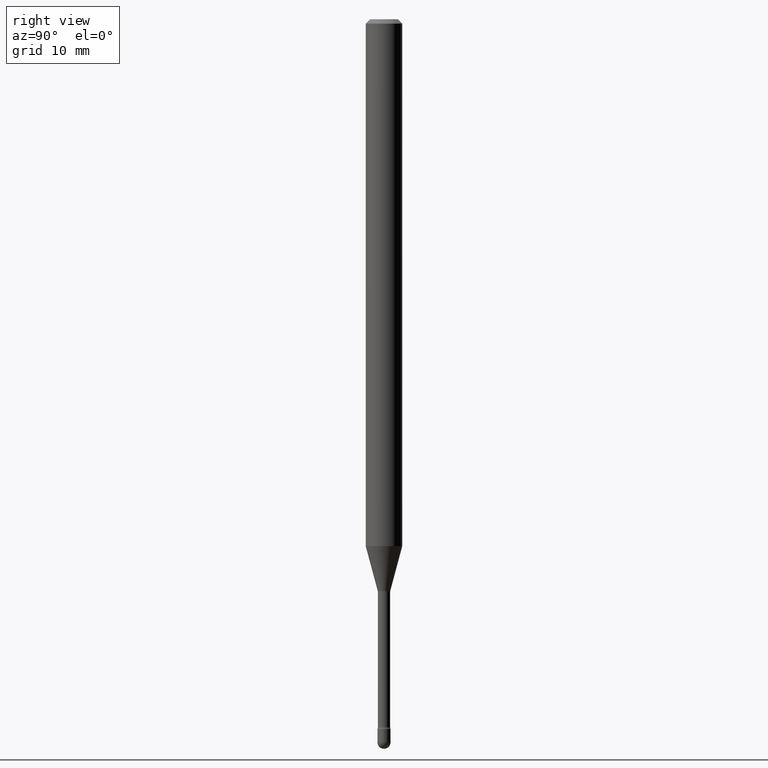
[diagram: clean part render]
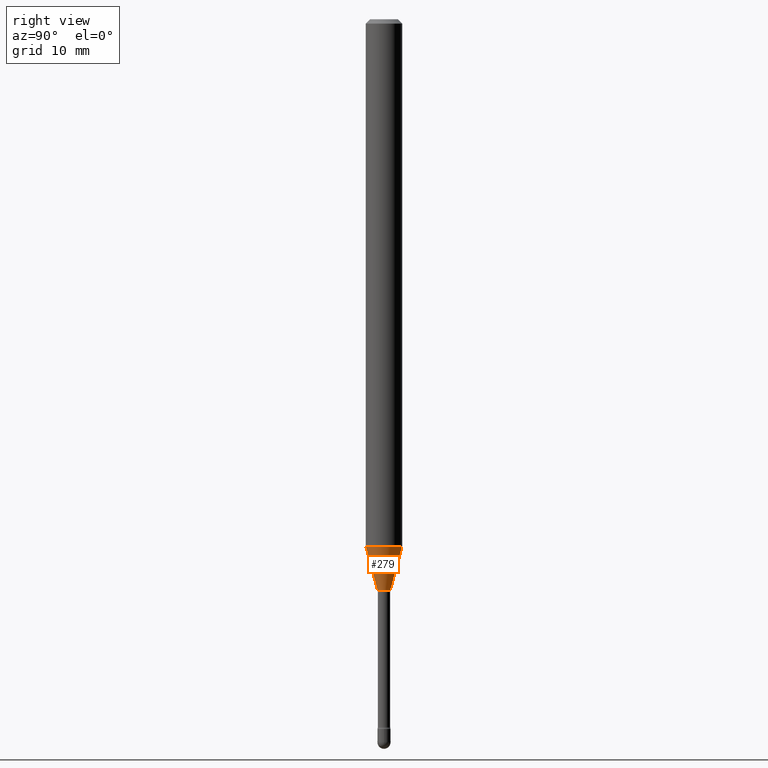
[diagram: same view with one face highlighted and labeled with its STEP entity id]
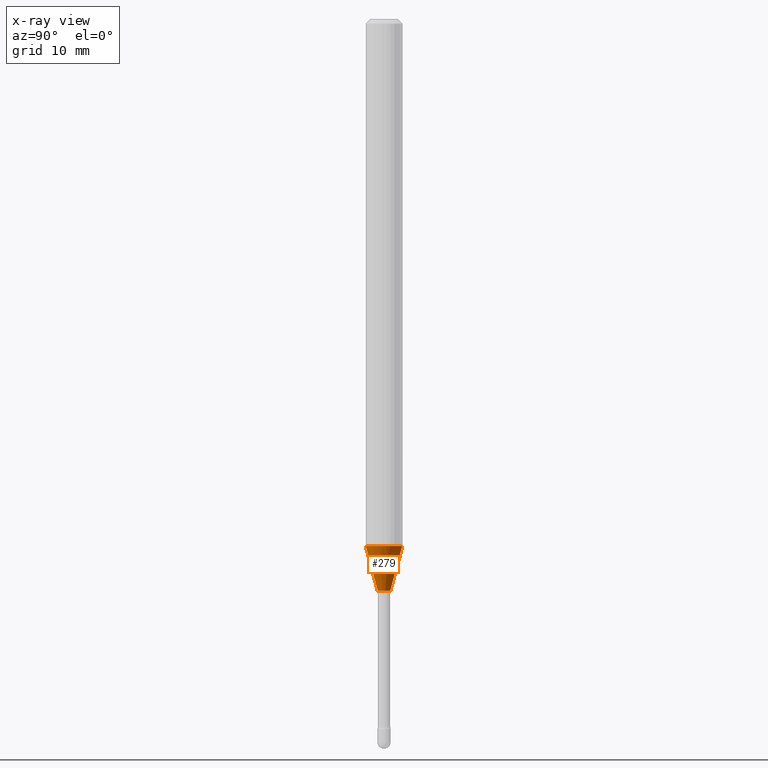
[diagram: x-ray of the same camera — body ghosted, the highlighted face saturated]
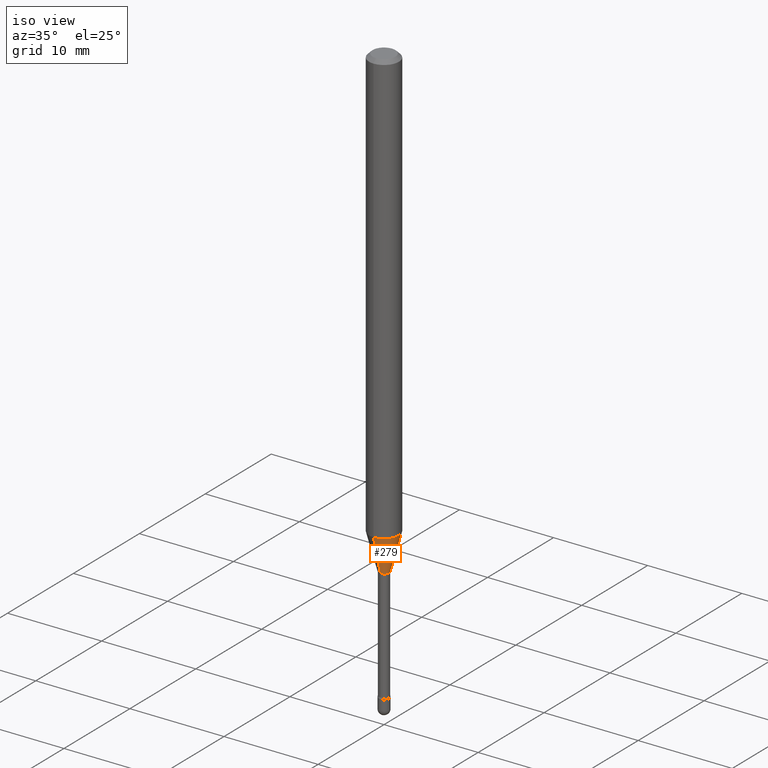
[diagram: same view with one face highlighted and labeled with its STEP entity id]
A machine part, right view. The second image highlights one B-rep face of the part: STEP entity #279.
The next image is the same camera in x-ray: the body ghosted, the highlighted face saturated — about 0% of this face is hidden behind the body in this view.
A second angle (iso view) of the same face is appended — the face is thin or edge-on in the first view.
In plain terms, the highlighted conical surface has half-angle 15 deg.
Its self-contained STEP definition (entity closure, byte-faithful):
#1 = VERTEX_POINT ( 'NONE', #420 ) ;
#7 = VERTEX_POINT ( 'NONE', #429 ) ;
#20 = DIRECTION ( 'NONE',  ( -6.982962677686265922E-15, -1.000000000000000000, 4.370956789862821150E-15 ) ) ;
#41 = EDGE_CURVE ( 'NONE', #395, #1, #481, .T. ) ;
#43 = ORIENTED_EDGE ( 'NONE', *, *, #41, .F. ) ;
#72 = CARTESIAN_POINT ( 'NONE',  ( -1.512587408824631926E-16, -0.02166111260567081531, -1.958092501787273232 ) ) ;
#74 = DIRECTION ( 'NONE',  ( -2.445426571026095552E-29, 3.491541821994768116E-15, 1.000000000000000000 ) ) ;
#107 = CARTESIAN_POINT ( 'NONE',  ( -4.364351673553475918E-16, -0.06250000000000632827, -1.805679699107026970 ) ) ;
#108 = CARTESIAN_POINT ( 'NONE',  ( 1.539114621044086185E-16, 0.02166111260565713875, -1.958092501787273232 ) ) ;
#117 = CIRCLE ( 'NONE', #163, 0.02166111260566397703 ) ;
#126 = ORIENTED_EDGE ( 'NONE', *, *, #268, .F. ) ;
#127 = VECTOR ( 'NONE', #164, 39.37007874015748854 ) ;
#149 = CARTESIAN_POINT ( 'NONE',  ( 4.415657114958730253E-29, -6.304606186559115346E-15, -1.805679699107027192 ) ) ;
#163 = AXIS2_PLACEMENT_3D ( 'NONE', #173, #215, #168 ) ;
#164 = DIRECTION ( 'NONE',  ( -1.807323732225326195E-15, -0.2588190451025176309, 0.9659258262890690894 ) ) ;
#168 = DIRECTION ( 'NONE',  ( -6.982962677686266711E-15, -1.000000000000000000, 0.000000000000000000 ) ) ;
#173 = CARTESIAN_POINT ( 'NONE',  ( 4.788371432397560516E-29, -6.836761861324629935E-15, -1.958092501787273232 ) ) ;
#176 = CARTESIAN_POINT ( 'NONE',  ( -1.512587408824631926E-16, -0.02166111260567081531, -1.958092501787273232 ) ) ;
#215 = DIRECTION ( 'NONE',  ( -2.445426571026095552E-29, 3.491541821994768116E-15, 1.000000000000000000 ) ) ;
#222 = AXIS2_PLACEMENT_3D ( 'NONE', #416, #254, #299 ) ;
#227 = ORIENTED_EDGE ( 'NONE', *, *, #281, .T. ) ;
#242 = EDGE_LOOP ( 'NONE', ( #227, #249, #43, #126 ) ) ;
#249 = ORIENTED_EDGE ( 'NONE', *, *, #339, .T. ) ;
#254 = DIRECTION ( 'NONE',  ( -2.445426571026095552E-29, 3.491541821994768116E-15, 1.000000000000000000 ) ) ;
#262 = LINE ( 'NONE', #108, #561 ) ;
#268 = EDGE_CURVE ( 'NONE', #454, #395, #443, .T. ) ;
#273 = CONICAL_SURFACE ( 'NONE', #222, 0.02166111260566397703, 0.2617993877991496854 ) ;
#279 = ADVANCED_FACE ( 'NONE', ( #386 ), #273, .T. ) ;
#281 = EDGE_CURVE ( 'NONE', #454, #7, #117, .T. ) ;
#299 = DIRECTION ( 'NONE',  ( -6.982962677686266711E-15, -1.000000000000000000, 0.000000000000000000 ) ) ;
#339 = EDGE_CURVE ( 'NONE', #7, #1, #262, .T. ) ;
#386 = FACE_OUTER_BOUND ( 'NONE', #242, .T. ) ;
#394 = DIRECTION ( 'NONE',  ( 1.839019923739596371E-15, 0.2588190451025244032, 0.9659258262890673130 ) ) ;
#395 = VERTEX_POINT ( 'NONE', #107 ) ;
#416 = CARTESIAN_POINT ( 'NONE',  ( 4.788371432397560516E-29, -6.836761861324629935E-15, -1.958092501787273232 ) ) ;
#420 = CARTESIAN_POINT ( 'NONE',  ( 4.440892098501065952E-16, 0.06249999999999367173, -1.805679699107027414 ) ) ;
#429 = CARTESIAN_POINT ( 'NONE',  ( 2.990003359772577671E-16, 0.02166111260565713875, -1.958092501787273232 ) ) ;
#435 = AXIS2_PLACEMENT_3D ( 'NONE', #149, #74, #20 ) ;
#443 = LINE ( 'NONE', #72, #127 ) ;
#454 = VERTEX_POINT ( 'NONE', #176 ) ;
#481 = CIRCLE ( 'NONE', #435, 0.06250000000000000000 ) ;
#561 = VECTOR ( 'NONE', #394, 39.37007874015748143 ) ;